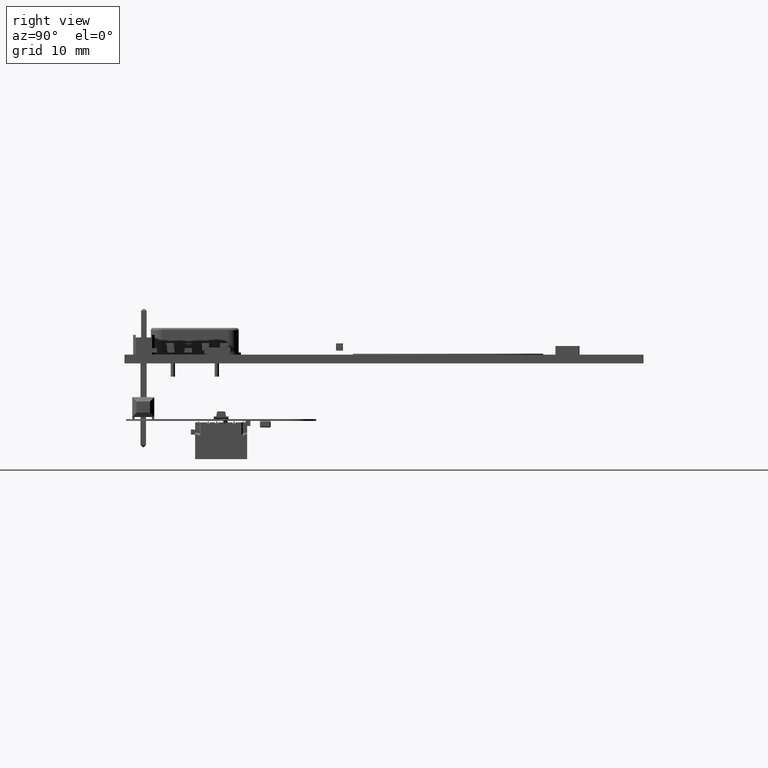
[diagram: clean part render]
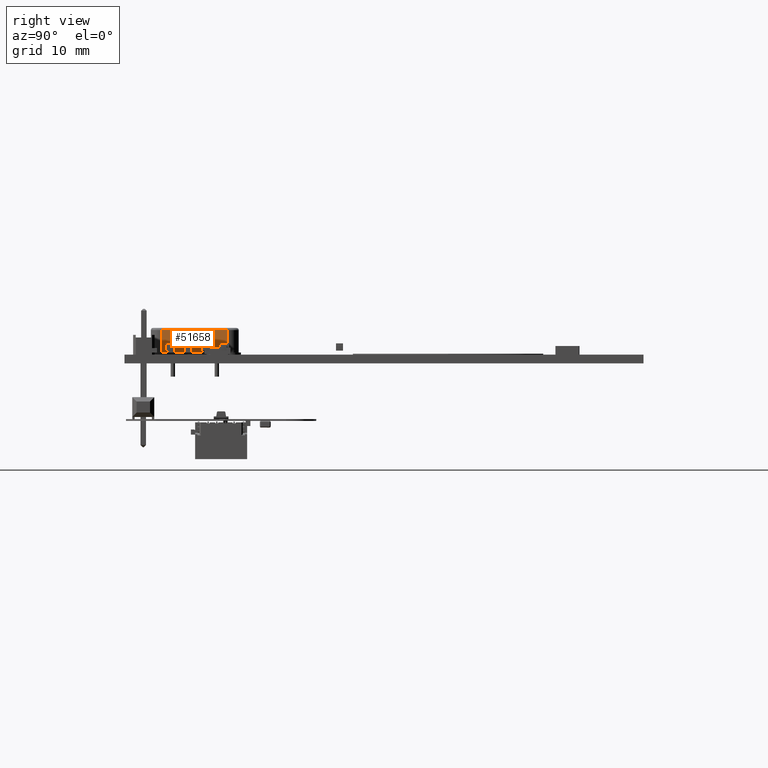
[diagram: same view with one face highlighted and labeled with its STEP entity id]
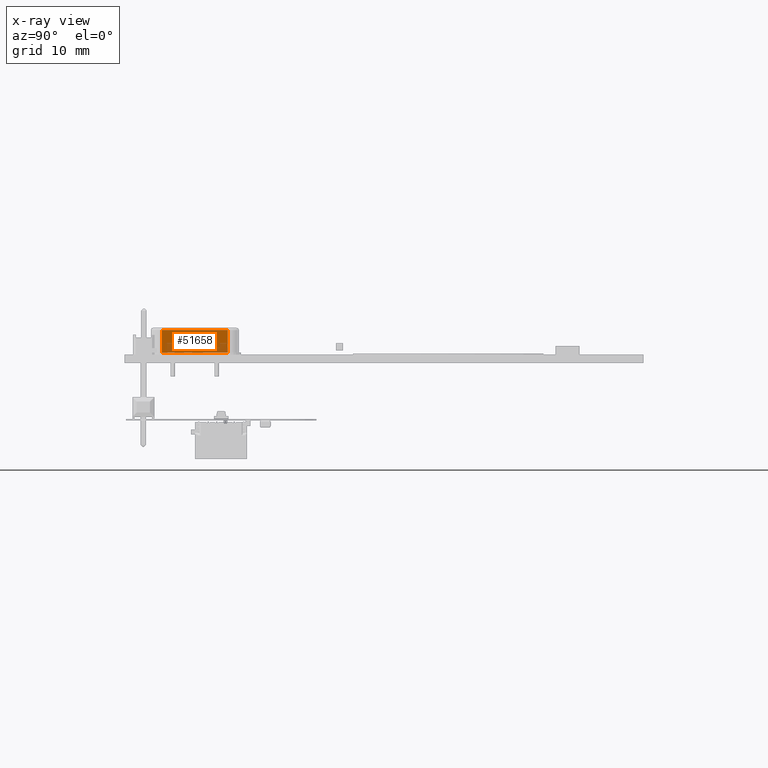
[diagram: x-ray of the same camera — body ghosted, the highlighted face saturated]
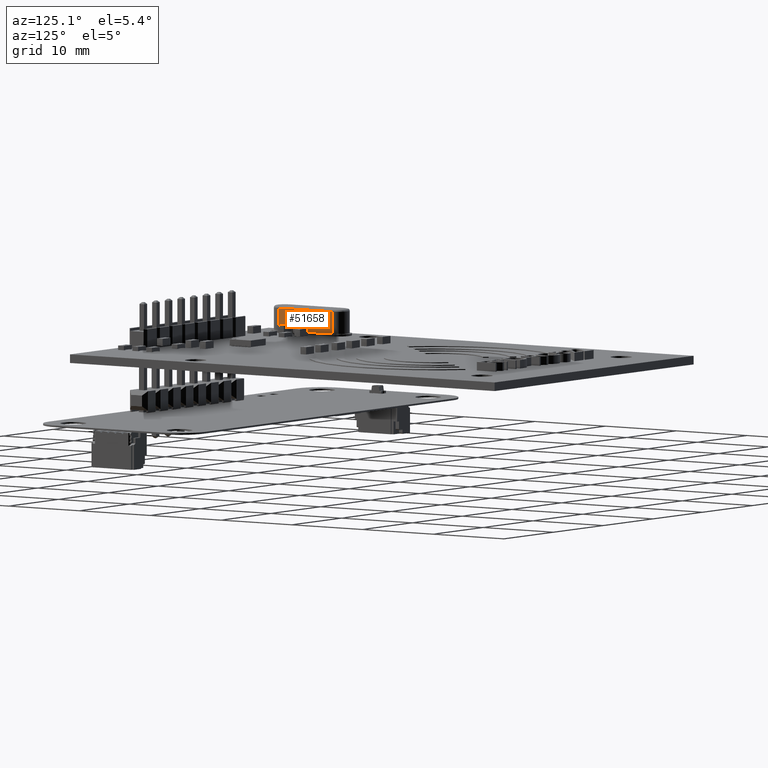
[diagram: same view with one face highlighted and labeled with its STEP entity id]
A machine part, right view. The second image highlights one B-rep face of the part: STEP entity #51658.
The next image is the same camera in x-ray: the body ghosted, the highlighted face saturated — about 19% of this face is hidden behind the body in this view.
A second angle (auxiliary view) of the same face is appended — the face is thin or edge-on in the first view.
In plain terms, the highlighted planar face has unit normal (1, 0, 0).
Its self-contained STEP definition (entity closure, byte-faithful):
#51139 = VERTEX_POINT('',#51140);
#51140 = CARTESIAN_POINT('',(6.35,1.27,2.839614778777));
#51577 = EDGE_CURVE('',#51578,#51580,#51582,.T.);
#51578 = VERTEX_POINT('',#51579);
#51579 = CARTESIAN_POINT('',(6.35,1.27,0.254));
#51580 = VERTEX_POINT('',#51581);
#51581 = CARTESIAN_POINT('',(-1.27,1.27,0.254));
#51582 = LINE('',#51583,#51584);
#51583 = CARTESIAN_POINT('',(6.35,1.27,0.254));
#51584 = VECTOR('',#51585,1.);
#51585 = DIRECTION('',(-1.,0.,-0.));
#51639 = VERTEX_POINT('',#51640);
#51640 = CARTESIAN_POINT('',(-1.27,1.27,2.839614778777));
#51647 = EDGE_CURVE('',#51639,#51580,#51648,.T.);
#51648 = LINE('',#51649,#51650);
#51649 = CARTESIAN_POINT('',(-1.27,1.27,3.56071937205E-16));
#51650 = VECTOR('',#51651,1.);
#51651 = DIRECTION('',(2.803716040985E-16,0.,-1.));
#51658 = ADVANCED_FACE('',(#51659),#51675,.T.);
#51659 = FACE_BOUND('',#51660,.T.);
#51660 = EDGE_LOOP('',(#51661,#51662,#51668,#51674));
#51661 = ORIENTED_EDGE('',*,*,#51647,.F.);
#51662 = ORIENTED_EDGE('',*,*,#51663,.T.);
#51663 = EDGE_CURVE('',#51639,#51139,#51664,.T.);
#51664 = LINE('',#51665,#51666);
#51665 = CARTESIAN_POINT('',(-2.54,1.27,2.839614778777));
#51666 = VECTOR('',#51667,1.);
#51667 = DIRECTION('',(1.,0.,-0.));
#51668 = ORIENTED_EDGE('',*,*,#51669,.T.);
#51669 = EDGE_CURVE('',#51139,#51578,#51670,.T.);
#51670 = LINE('',#51671,#51672);
#51671 = CARTESIAN_POINT('',(6.35,1.27,0.));
#51672 = VECTOR('',#51673,1.);
#51673 = DIRECTION('',(-0.,0.,-1.));
#51674 = ORIENTED_EDGE('',*,*,#51577,.T.);
#51675 = PLANE('',#51676);
#51676 = AXIS2_PLACEMENT_3D('',#51677,#51678,#51679);
#51677 = CARTESIAN_POINT('',(-2.54,1.27,0.));
#51678 = DIRECTION('',(0.,1.,0.));
#51679 = DIRECTION('',(0.,-0.,1.));